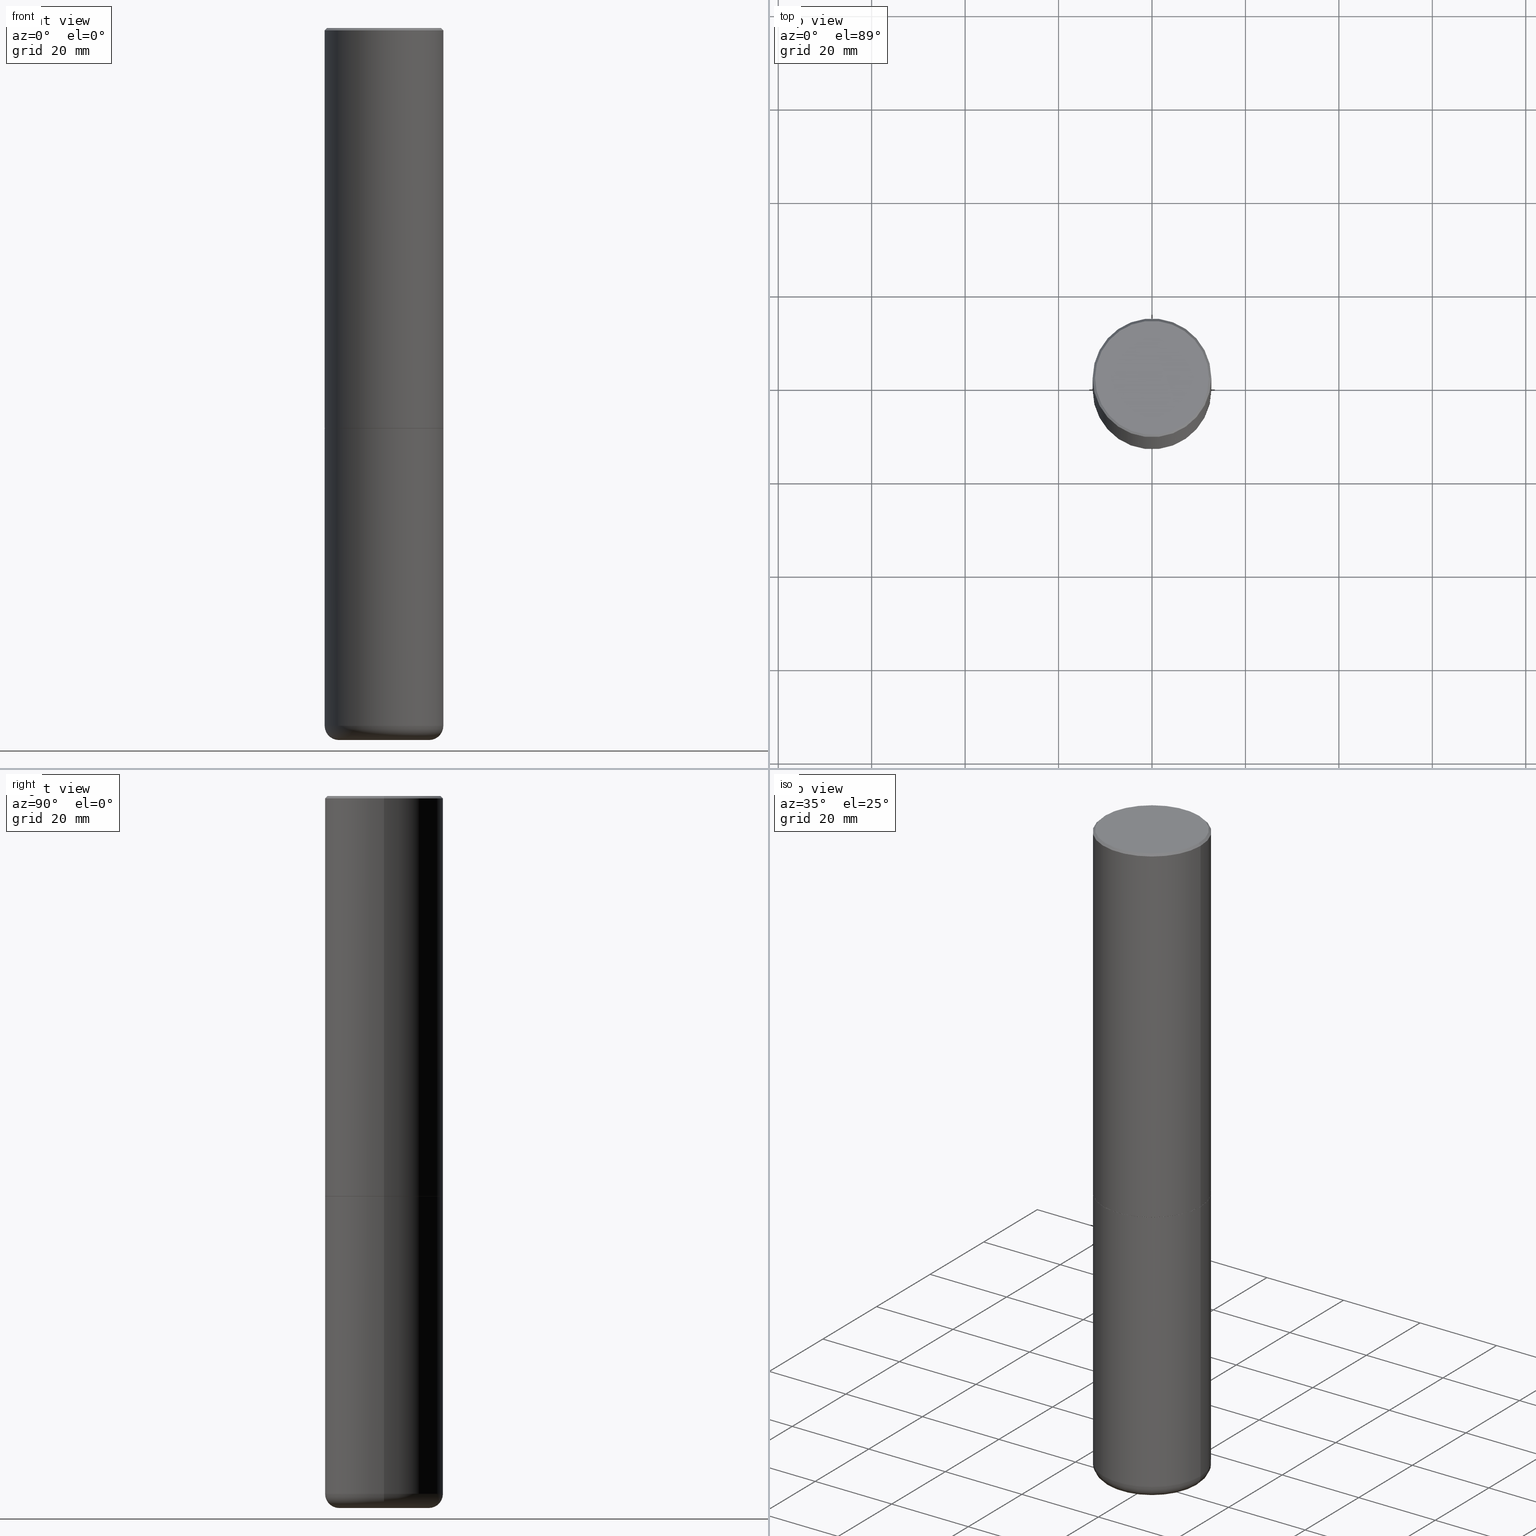
[diagram: canonical four-view strip — front | top / right | iso, engineering-drawing reading convention]
A machine part, canonical four-view strip (front | top / right | iso — engineering-drawing reading convention). The complete STEP part file that produces these views, byte-faithful:
ISO-10303-21;
HEADER;
FILE_DESCRIPTION (( 'STEP AP203' ),
    '1' );
FILE_NAME ('35126.STEP',
    '2022-07-29T12:17:54',
    ( '' ),
    ( '' ),
    'SwSTEP 2.0',
    'SolidWorks 2022',
    '' );
FILE_SCHEMA (( 'CONFIG_CONTROL_DESIGN' ));
ENDSEC;

DATA;
#1 = CLOSED_SHELL ( 'NONE', ( #425, #17, #170, #60, #44, #285, #221, #130, #449 ) ) ;
#2 = APPROVAL_DATE_TIME ( #334, #225 ) ;
#3 = LOCAL_TIME ( 8, 17, 54.00000000000000000, #30 ) ;
#4 = APPROVAL ( #321, 'UNSPECIFIED' ) ;
#5 = CONICAL_SURFACE ( 'NONE', #423, 0.3469528157401960411, 1.535889741755011029 ) ;
#6 = FACE_OUTER_BOUND ( 'NONE', #177, .T. ) ;
#7 = CARTESIAN_POINT ( 'NONE',  ( -0.4999999999999997224, 3.552713678800498957E-15, -2.459467545127451490E-29 ) ) ;
#8 = AXIS2_PLACEMENT_3D ( 'NONE', #311, #277, #435 ) ;
#9 = EDGE_CURVE ( 'NONE', #315, #18, #72, .T. ) ;
#10 = CARTESIAN_POINT ( 'NONE',  ( 1.464301836969204116E-28, -2.090486974609824986E-14, -5.987604880927720252 ) ) ;
#11 = CIRCLE ( 'NONE', #203, 0.4999999999999990563 ) ;
#12 = CARTESIAN_POINT ( 'NONE',  ( 8.253457220874838256E-29, -1.178374951859561925E-14, -3.375000000000000888 ) ) ;
#13 = DIRECTION ( 'NONE',  ( 1.000000000000000000, -6.982962677686266711E-15, 4.876176775795935793E-29 ) ) ;
#14 = ORIENTED_EDGE ( 'NONE', *, *, #309, .F. ) ;
#15 = DIRECTION ( 'NONE',  ( -2.445468806185136597E-29, 3.491481338843145583E-15, 1.000000000000000000 ) ) ;
#16 = CYLINDRICAL_SURFACE ( 'NONE', #227, 0.4999999999999997224 ) ;
#17 = ADVANCED_FACE ( 'NONE', ( #217 ), #89, .T. ) ;
#18 = VERTEX_POINT ( 'NONE', #363 ) ;
#19 = FACE_OUTER_BOUND ( 'NONE', #65, .T. ) ;
#20 = CIRCLE ( 'NONE', #159, 0.1200000000000004952 ) ;
#21 = ORIENTED_EDGE ( 'NONE', *, *, #45, .T. ) ;
#22 = PRODUCT ( '35126', '35126', '', ( #194 ) ) ;
#23 = FACE_OUTER_BOUND ( 'NONE', #347, .T. ) ;
#24 = DIRECTION ( 'NONE',  ( 1.000000000000000000, -6.982962677686265133E-15, 0.000000000000000000 ) ) ;
#25 = DIRECTION ( 'NONE',  ( -2.445468806185136877E-29, 3.491481338843145188E-15, 1.000000000000000000 ) ) ;
#26 = ORIENTED_EDGE ( 'NONE', *, *, #461, .F. ) ;
#27 = CARTESIAN_POINT ( 'NONE',  ( 0.3469528157401960411, -2.332818210049246927E-14, -5.999720740230696236 ) ) ;
#28 = DIRECTION ( 'NONE',  ( 1.000000000000000000, -6.982962677686267499E-15, 4.876176775795935793E-29 ) ) ;
#29 = EDGE_CURVE ( 'NONE', #96, #431, #210, .T. ) ;
#30 = COORDINATED_UNIVERSAL_TIME_OFFSET ( 5, 0, .BEHIND. ) ;
#31 = VERTEX_POINT ( 'NONE', #318 ) ;
#32 = CC_DESIGN_APPROVAL ( #225, ( #364 ) ) ;
#33 = LINE ( 'NONE', #27, #87 ) ;
#34 = APPROVAL_ROLE ( '' ) ;
#35 = VERTEX_POINT ( 'NONE', #149 ) ;
#36 = TOROIDAL_SURFACE ( 'NONE', #433, 0.3800000000000003930, 0.1200000000000004952 ) ;
#37 = FACE_OUTER_BOUND ( 'NONE', #120, .T. ) ;
#38 = ADVANCED_FACE ( 'NONE', ( #147 ), #71, .T. ) ;
#39 = PERSON_AND_ORGANIZATION ( #81, #90 ) ;
#40 = CIRCLE ( 'NONE', #310, 0.4999999999999994449 ) ;
#41 = APPROVAL_STATUS ( 'not_yet_approved' ) ;
#42 = CONICAL_SURFACE ( 'NONE', #276, 0.4999999999999990563, 0.7853981633974458365 ) ;
#43 = DIRECTION ( 'NONE',  ( -1.000000000000000000, 6.982962677686266711E-15, 0.000000000000000000 ) ) ;
#44 = ADVANCED_FACE ( 'NONE', ( #63 ), #5, .F. ) ;
#45 = EDGE_CURVE ( 'NONE', #189, #117, #385, .T. ) ;
#46 = DIRECTION ( 'NONE',  ( 0.7071067811865457964, -7.319954787623249734E-15, -0.7071067811865492381 ) ) ;
#47 = CONICAL_SURFACE ( 'NONE', #472, 0.3789528157401960695, 1.562069680534965865 ) ;
#48 = AXIS2_PLACEMENT_3D ( 'NONE', #440, #195, #330 ) ;
#49 = CARTESIAN_POINT ( 'NONE',  ( -0.3789528157401960695, -1.830267466414096086E-14, -5.999999999999999112 ) ) ;
#50 = EDGE_CURVE ( 'NONE', #306, #407, #11, .T. ) ;
#51 = DIRECTION ( 'NONE',  ( 1.000000000000000000, -6.982962677686264344E-15, 0.000000000000000000 ) ) ;
#52 = DIRECTION ( 'NONE',  ( -1.000000000000000000, 7.105427357600993970E-15, 0.000000000000000000 ) ) ;
#53 = LINE ( 'NONE', #304, #121 ) ;
#54 = CARTESIAN_POINT ( 'NONE',  ( -0.4999999999999990563, 3.421651712066262957E-15, -0.02000000000000028144 ) ) ;
#55 = ORIENTED_EDGE ( 'NONE', *, *, #353, .F. ) ;
#56 = DIRECTION ( 'NONE',  ( 1.000000000000000000, -6.982962677686265133E-15, 0.000000000000000000 ) ) ;
#57 = EDGE_CURVE ( 'NONE', #239, #117, #406, .T. ) ;
#58 = ORIENTED_EDGE ( 'NONE', *, *, #329, .T. ) ;
#59 = DIRECTION ( 'NONE',  ( 2.438088387897960049E-29, -3.491481338843145188E-15, -1.000000000000000000 ) ) ;
#60 = ADVANCED_FACE ( 'NONE', ( #107 ), #169, .F. ) ;
#61 = ORIENTED_EDGE ( 'NONE', *, *, #459, .F. ) ;
#62 = DIRECTION ( 'NONE',  ( 1.000000000000000000, -6.982962677686266711E-15, 0.000000000000000000 ) ) ;
#63 = FACE_OUTER_BOUND ( 'NONE', #168, .T. ) ;
#64 = CIRCLE ( 'NONE', #490, 0.5000000000000000000 ) ;
#65 = EDGE_LOOP ( 'NONE', ( #282, #327, #111, #214 ) ) ;
#66 = DIRECTION ( 'NONE',  ( -1.000000000000000000, 6.982962677686265133E-15, 0.000000000000000000 ) ) ;
#67 = DIRECTION ( 'NONE',  ( -2.445468806185136597E-29, 3.491481338843145583E-15, 1.000000000000000000 ) ) ;
#68 = VECTOR ( 'NONE', #436, 39.37007874015748143 ) ;
#69 = ORIENTED_EDGE ( 'NONE', *, *, #427, .F. ) ;
#70 = PLANE ( 'NONE',  #332 ) ;
#71 = CYLINDRICAL_SURFACE ( 'NONE', #492, 0.4999999999999992228 ) ;
#72 = CIRCLE ( 'NONE', #402, 0.3789528157401960695 ) ;
#73 = EDGE_CURVE ( 'NONE', #181, #239, #287, .T. ) ;
#74 = ORIENTED_EDGE ( 'NONE', *, *, #340, .F. ) ;
#75 = DIRECTION ( 'NONE',  ( -1.000000000000000000, 6.982962677686265133E-15, 0.000000000000000000 ) ) ;
#76 = CARTESIAN_POINT ( 'NONE',  ( 1.437936775428365776E-28, -2.052992622578700095E-14, -5.880004569232298195 ) ) ;
#77 = VERTEX_POINT ( 'NONE', #180 ) ;
#78 = CC_DESIGN_APPROVAL ( #4, ( #213 ) ) ;
#79 = DIRECTION ( 'NONE',  ( 2.445468806185136597E-29, -3.491481338843145583E-15, -1.000000000000000000 ) ) ;
#80 = ADVANCED_FACE ( 'NONE', ( #223 ), #458, .T. ) ;
#81 = PERSON ( 'UNSPECIFIED', 'UNSPECIFIED', 'UNSPECIFIED', ('UNSPECIFIED'), ('UNSPECIFIED'), ('UNSPECIFIED') ) ;
#82 = AXIS2_PLACEMENT_3D ( 'NONE', #98, #470, #141 ) ;
#83 = CARTESIAN_POINT ( 'NONE',  ( -0.4799999999999988165, 3.386736898677831703E-15, 1.280553747027767124E-17 ) ) ;
#84 = PERSON_AND_ORGANIZATION_ROLE ( 'design_supplier' ) ;
#85 = FACE_OUTER_BOUND ( 'NONE', #241, .T. ) ;
#86 = CALENDAR_DATE ( 2022, 29, 7 ) ;
#87 = VECTOR ( 'NONE', #374, 39.37007874015748143 ) ;
#88 = CIRCLE ( 'NONE', #249, 0.4999999999999990563 ) ;
#89 = TOROIDAL_SURFACE ( 'NONE', #352, 0.3800000000000003930, 0.1200000000000004952 ) ;
#90 = ORGANIZATION ( 'UNSPECIFIED', 'UNSPECIFIED', '' ) ;
#91 = ADVANCED_FACE ( 'NONE', ( #488 ), #371, .F. ) ;
#92 = EDGE_CURVE ( 'NONE', #224, #77, #259, .T. ) ;
#93 = AXIS2_PLACEMENT_3D ( 'NONE', #384, #390, #56 ) ;
#94 = CARTESIAN_POINT ( 'NONE',  ( 0.4999999999999994449, -1.527523085743874787E-14, -3.375000000000000888 ) ) ;
#95 = DIRECTION ( 'NONE',  ( 1.000000000000000000, -6.982962677686264344E-15, 0.000000000000000000 ) ) ;
#96 = VERTEX_POINT ( 'NONE', #83 ) ;
#97 = CONICAL_SURFACE ( 'NONE', #283, 0.3789528157401960695, 1.562069680534965865 ) ;
#98 = CARTESIAN_POINT ( 'NONE',  ( -3.131554243005659264E-46, 4.471029511141341874E-32, 1.280553747030123384E-17 ) ) ;
#99 = ORIENTED_EDGE ( 'NONE', *, *, #337, .F. ) ;
#100 = AXIS2_PLACEMENT_3D ( 'NONE', #119, #300, #380 ) ;
#101 = FACE_OUTER_BOUND ( 'NONE', #439, .T. ) ;
#102 = AXIS2_PLACEMENT_3D ( 'NONE', #345, #305, #136 ) ;
#103 = ORIENTED_EDGE ( 'NONE', *, *, #137, .F. ) ;
#104 = DIRECTION ( 'NONE',  ( -2.445468806185136597E-29, 3.491481338843145583E-15, 1.000000000000000000 ) ) ;
#105 = CARTESIAN_POINT ( 'NONE',  ( 1.467281283711081734E-28, -2.094888803305886955E-14, -5.999999999999999112 ) ) ;
#106 = ADVANCED_FACE ( 'NONE', ( #19 ), #42, .T. ) ;
#107 = FACE_OUTER_BOUND ( 'NONE', #246, .T. ) ;
#108 = ORIENTED_EDGE ( 'NONE', *, *, #459, .T. ) ;
#109 = CARTESIAN_POINT ( 'NONE',  ( 0.4999999999999990563, -3.500078625662622769E-15, -0.02000000000000028144 ) ) ;
#110 = PRODUCT_RELATED_PRODUCT_CATEGORY ( 'detail', '', ( #22 ) ) ;
#111 = ORIENTED_EDGE ( 'NONE', *, *, #123, .T. ) ;
#112 = CARTESIAN_POINT ( 'NONE',  ( 4.890937612370341472E-31, -6.982962677686388984E-17, -0.02000000000000028144 ) ) ;
#113 = AXIS2_PLACEMENT_3D ( 'NONE', #206, #59, #236 ) ;
#114 = ORIENTED_EDGE ( 'NONE', *, *, #242, .F. ) ;
#115 = DIRECTION ( 'NONE',  ( 0.000000000000000000, 0.000000000000000000, 1.000000000000000000 ) ) ;
#116 = DIRECTION ( 'NONE',  ( 2.445468806185136597E-29, -3.491481338843145583E-15, -1.000000000000000000 ) ) ;
#117 = VERTEX_POINT ( 'NONE', #94 ) ;
#118 = DIRECTION ( 'NONE',  ( -2.445468806185136597E-29, 3.491481338843145583E-15, 1.000000000000000000 ) ) ;
#119 = CARTESIAN_POINT ( 'NONE',  ( 0.000000000000000000, 0.000000000000000000, 0.000000000000000000 ) ) ;
#120 = EDGE_LOOP ( 'NONE', ( #14, #55 ) ) ;
#121 = VECTOR ( 'NONE', #349, 39.37007874015748143 ) ;
#122 = DIRECTION ( 'NONE',  ( -2.438088387897960049E-29, 3.491481338843145188E-15, 1.000000000000000000 ) ) ;
#123 = EDGE_CURVE ( 'NONE', #407, #306, #88, .T. ) ;
#124 = DIRECTION ( 'NONE',  ( -1.000000000000000000, 6.982962677686265922E-15, -4.876176775795935793E-29 ) ) ;
#125 = AXIS2_PLACEMENT_3D ( 'NONE', #155, #455, #124 ) ;
#126 = CALENDAR_DATE ( 2022, 29, 7 ) ;
#127 = COORDINATED_UNIVERSAL_TIME_OFFSET ( 5, 0, .BEHIND. ) ;
#128 = EDGE_CURVE ( 'NONE', #35, #407, #302, .T. ) ;
#129 = APPLICATION_PROTOCOL_DEFINITION ( 'international standard', 'config_control_design', 1994, #381 ) ;
#130 = ADVANCED_FACE ( 'NONE', ( #462 ), #36, .T. ) ;
#131 =( GEOMETRIC_REPRESENTATION_CONTEXT ( 3 ) GLOBAL_UNCERTAINTY_ASSIGNED_CONTEXT ( ( #469 ) ) GLOBAL_UNIT_ASSIGNED_CONTEXT ( ( #186, #218, #438 ) ) REPRESENTATION_CONTEXT ( 'NONE', 'WORKASPACE' ) );
#132 = CARTESIAN_POINT ( 'NONE',  ( -0.4999999999999999445, -1.260412419339080680E-14, -5.880004569232298195 ) ) ;
#133 = AXIS2_PLACEMENT_3D ( 'NONE', #76, #290, #451 ) ;
#134 = CARTESIAN_POINT ( 'NONE',  ( 4.890937612370341472E-31, -6.982962677686388984E-17, -0.02000000000000028144 ) ) ;
#135 = ORIENTED_EDGE ( 'NONE', *, *, #73, .F. ) ;
#136 = DIRECTION ( 'NONE',  ( 1.000000000000000000, -6.982962677686264344E-15, 0.000000000000000000 ) ) ;
#137 = EDGE_CURVE ( 'NONE', #117, #189, #465, .T. ) ;
#138 = EDGE_CURVE ( 'NONE', #18, #315, #232, .T. ) ;
#139 = CC_DESIGN_PERSON_AND_ORGANIZATION_ASSIGNMENT ( #417, #160, ( #265 ) ) ;
#140 = CIRCLE ( 'NONE', #8, 0.1200000000000004952 ) ;
#141 = DIRECTION ( 'NONE',  ( 1.000000000000000000, -6.982962677686267499E-15, 4.876036955247141175E-29 ) ) ;
#142 = ORIENTED_EDGE ( 'NONE', *, *, #410, .T. ) ;
#143 = DIRECTION ( 'NONE',  ( -2.445468806185136597E-29, 3.491481338843145583E-15, 1.000000000000000000 ) ) ;
#144 = AXIS2_PLACEMENT_3D ( 'NONE', #240, #266, #312 ) ;
#145 = DIRECTION ( 'NONE',  ( -2.445468806185136597E-29, 3.491481338843145583E-15, 1.000000000000000000 ) ) ;
#146 = EDGE_CURVE ( 'NONE', #96, #306, #235, .T. ) ;
#147 = FACE_OUTER_BOUND ( 'NONE', #477, .T. ) ;
#148 = CC_DESIGN_PERSON_AND_ORGANIZATION_ASSIGNMENT ( #162, #375, ( #364 ) ) ;
#149 = CARTESIAN_POINT ( 'NONE',  ( 0.4999999999999994449, -1.527173937609990644E-14, -3.374000000000001886 ) ) ;
#150 = ORIENTED_EDGE ( 'NONE', *, *, #29, .T. ) ;
#151 = APPLICATION_PROTOCOL_DEFINITION ( 'international standard', 'config_control_design', 1994, #405 ) ;
#152 = ORIENTED_EDGE ( 'NONE', *, *, #298, .F. ) ;
#153 = DIRECTION ( 'NONE',  ( -2.445468806185136597E-29, 3.491481338843145583E-15, 1.000000000000000000 ) ) ;
#154 = ORIENTED_EDGE ( 'NONE', *, *, #9, .T. ) ;
#155 = CARTESIAN_POINT ( 'NONE',  ( 3.351822085289399659E-15, 0.4799999999999988165, -1.669508273909555106E-15 ) ) ;
#156 = APPROVAL_PERSON_ORGANIZATION ( #297, #263, #491 ) ;
#157 = SECURITY_CLASSIFICATION_LEVEL ( 'unclassified' ) ;
#158 = CARTESIAN_POINT ( 'NONE',  ( 0.4999999999999990563, -3.500078625662622769E-15, -0.02000000000000028144 ) ) ;
#159 = AXIS2_PLACEMENT_3D ( 'NONE', #238, #350, #52 ) ;
#160 = PERSON_AND_ORGANIZATION_ROLE ( 'creator' ) ;
#161 = CC_DESIGN_DATE_AND_TIME_ASSIGNMENT ( #437, #356, ( #213 ) ) ;
#162 = PERSON_AND_ORGANIZATION ( #81, #90 ) ;
#163 = VECTOR ( 'NONE', #333, 39.37007874015748854 ) ;
#164 = CARTESIAN_POINT ( 'NONE',  ( 1.467212991605616561E-28, -2.094791300278565904E-14, -5.999720740230696236 ) ) ;
#165 = EDGE_CURVE ( 'NONE', #431, #96, #200, .T. ) ;
#166 = PLANE ( 'NONE',  #113 ) ;
#167 = AXIS2_PLACEMENT_3D ( 'NONE', #228, #145, #399 ) ;
#168 = EDGE_LOOP ( 'NONE', ( #69, #391, #74 ) ) ;
#169 = CONICAL_SURFACE ( 'NONE', #48, 0.3469528157401960411, 1.535889741755011029 ) ;
#170 = ADVANCED_FACE ( 'NONE', ( #386 ), #16, .T. ) ;
#171 = DIRECTION ( 'NONE',  ( -0.7071067811865457964, 2.468850131082238917E-15, -0.7071067811865492381 ) ) ;
#172 = ORIENTED_EDGE ( 'NONE', *, *, #309, .T. ) ;
#173 = DIRECTION ( 'NONE',  ( -2.445468806185136597E-29, 3.491481338843145583E-15, 1.000000000000000000 ) ) ;
#174 = DIRECTION ( 'NONE',  ( -2.445468806185136597E-29, 3.491481338843145583E-15, 1.000000000000000000 ) ) ;
#175 = AXIS2_PLACEMENT_3D ( 'NONE', #216, #413, #280 ) ;
#176 = CARTESIAN_POINT ( 'NONE',  ( 0.000000000000000000, 0.000000000000000000, 0.000000000000000000 ) ) ;
#177 = EDGE_LOOP ( 'NONE', ( #275, #21 ) ) ;
#178 = MANIFOLD_SOLID_BREP ( 'Body-Move/Copy2[2]', #270 ) ;
#179 = ORIENTED_EDGE ( 'NONE', *, *, #410, .F. ) ;
#180 = CARTESIAN_POINT ( 'NONE',  ( -0.3469528157401960411, -1.852515443955370911E-14, -5.999720740230696236 ) ) ;
#181 = VERTEX_POINT ( 'NONE', #132 ) ;
#182 = CARTESIAN_POINT ( 'NONE',  ( -0.4999999999999992228, 3.552713678800495407E-15, -2.459467545127449248E-29 ) ) ;
#183 = CARTESIAN_POINT ( 'NONE',  ( 1.437936775428365776E-28, -2.052992622578700095E-14, -5.880004569232298195 ) ) ;
#184 = DIRECTION ( 'NONE',  ( -2.445468806185136597E-29, 3.491481338843145583E-15, 1.000000000000000000 ) ) ;
#185 = ORIENTED_EDGE ( 'NONE', *, *, #382, .T. ) ;
#186 =( CONVERSION_BASED_UNIT ( 'INCH', #316 ) LENGTH_UNIT ( ) NAMED_UNIT ( #456 ) );
#187 = CARTESIAN_POINT ( 'NONE',  ( -3.131554243005659264E-46, 4.471029511141341874E-32, 1.280553747030123384E-17 ) ) ;
#188 = DATE_AND_TIME ( #326, #3 ) ;
#189 = VERTEX_POINT ( 'NONE', #269 ) ;
#190 = CARTESIAN_POINT ( 'NONE',  ( 1.467281283711081734E-28, -2.094888803305886955E-14, -5.999999999999999112 ) ) ;
#191 = CYLINDRICAL_SURFACE ( 'NONE', #100, 0.4999999999999992228 ) ;
#192 = APPROVAL_DATE_TIME ( #188, #4 ) ;
#193 = ORIENTED_EDGE ( 'NONE', *, *, #278, .T. ) ;
#194 = MECHANICAL_CONTEXT ( 'NONE', #405, 'mechanical' ) ;
#195 = DIRECTION ( 'NONE',  ( 2.445468806185136597E-29, -3.491481338843145583E-15, -1.000000000000000000 ) ) ;
#196 = CARTESIAN_POINT ( 'NONE',  ( 1.437936775428365776E-28, -2.052992622578700095E-14, -5.880004569232298195 ) ) ;
#197 = LOCAL_TIME ( 8, 17, 54.00000000000000000, #377 ) ;
#198 = CALENDAR_DATE ( 2022, 29, 7 ) ;
#199 = CC_DESIGN_DATE_AND_TIME_ASSIGNMENT ( #460, #260, ( #364 ) ) ;
#200 = CIRCLE ( 'NONE', #82, 0.4799999999999988165 ) ;
#201 = CALENDAR_DATE ( 2022, 29, 7 ) ;
#202 = VECTOR ( 'NONE', #394, 39.37007874015748143 ) ;
#203 = AXIS2_PLACEMENT_3D ( 'NONE', #112, #153, #229 ) ;
#204 = DIRECTION ( 'NONE',  ( -0.9999619230641716427, 6.952228252019315186E-15, -0.008726535498333042040 ) ) ;
#205 = CARTESIAN_POINT ( 'NONE',  ( 8.251011752068656016E-29, -1.178025803725677782E-14, -3.374000000000001886 ) ) ;
#206 = CARTESIAN_POINT ( 'NONE',  ( 3.491481338843211453E-15, 0.4999999999999876210, -3.375000000000002665 ) ) ;
#207 = CARTESIAN_POINT ( 'NONE',  ( -0.4989999999999994440, -8.232842812804502449E-15, -3.375000000000000888 ) ) ;
#208 = CARTESIAN_POINT ( 'NONE',  ( -0.4999999999999990563, 3.421651712066262957E-15, -0.02000000000000028144 ) ) ;
#209 = ORIENTED_EDGE ( 'NONE', *, *, #57, .F. ) ;
#210 = CIRCLE ( 'NONE', #346, 0.4799999999999988165 ) ;
#211 = LINE ( 'NONE', #49, #414 ) ;
#212 = ORIENTED_EDGE ( 'NONE', *, *, #242, .T. ) ;
#213 = SECURITY_CLASSIFICATION ( '', '', #157 ) ;
#214 = ORIENTED_EDGE ( 'NONE', *, *, #146, .F. ) ;
#215 = ORIENTED_EDGE ( 'NONE', *, *, #378, .T. ) ;
#216 = CARTESIAN_POINT ( 'NONE',  ( 4.890937612370341472E-31, -6.982962677686388984E-17, -0.02000000000000028144 ) ) ;
#217 = FACE_OUTER_BOUND ( 'NONE', #480, .T. ) ;
#218 =( NAMED_UNIT ( * ) PLANE_ANGLE_UNIT ( ) SI_UNIT ( $, .RADIAN. ) );
#219 = CARTESIAN_POINT ( 'NONE',  ( 0.000000000000000000, 0.000000000000000000, 0.000000000000000000 ) ) ;
#220 = ORIENTED_EDGE ( 'NONE', *, *, #73, .T. ) ;
#221 = ADVANCED_FACE ( 'NONE', ( #101 ), #424, .T. ) ;
#222 = VECTOR ( 'NONE', #483, 39.37007874015748854 ) ;
#223 = FACE_OUTER_BOUND ( 'NONE', #443, .T. ) ;
#224 = VERTEX_POINT ( 'NONE', #10 ) ;
#225 = APPROVAL ( #230, 'UNSPECIFIED' ) ;
#226 = DIRECTION ( 'NONE',  ( 2.445468806185136597E-29, -3.491481338843145583E-15, -1.000000000000000000 ) ) ;
#227 = AXIS2_PLACEMENT_3D ( 'NONE', #176, #274, #13 ) ;
#228 = CARTESIAN_POINT ( 'NONE',  ( 1.467212991605616561E-28, -2.094791300278565904E-14, -5.999720740230696236 ) ) ;
#229 = DIRECTION ( 'NONE',  ( 1.000000000000000000, -6.982962677686266711E-15, 0.000000000000000000 ) ) ;
#230 = APPROVAL_STATUS ( 'not_yet_approved' ) ;
#231 = CIRCLE ( 'NONE', #409, 0.4989999999999994440 ) ;
#232 = CIRCLE ( 'NONE', #93, 0.3789528157401960695 ) ;
#233 = CONICAL_SURFACE ( 'NONE', #175, 0.4999999999999990563, 0.7853981633974458365 ) ;
#234 = CARTESIAN_POINT ( 'NONE',  ( 8.253457220874838256E-29, -1.178374951859561925E-14, -3.375000000000000888 ) ) ;
#235 = LINE ( 'NONE', #208, #335 ) ;
#236 = DIRECTION ( 'NONE',  ( -1.000000000000000000, 6.982962677686265922E-15, -4.876176775795935793E-29 ) ) ;
#237 = EDGE_LOOP ( 'NONE', ( #172, #58, #485, #179 ) ) ;
#238 = CARTESIAN_POINT ( 'NONE',  ( -0.3800000000000003930, -1.782986382989861784E-14, -5.880004569232298195 ) ) ;
#239 = VERTEX_POINT ( 'NONE', #389 ) ;
#240 = CARTESIAN_POINT ( 'NONE',  ( 8.253457220874838256E-29, -1.178374951859561925E-14, -3.375000000000000888 ) ) ;
#241 = EDGE_LOOP ( 'NONE', ( #360, #215, #452, #281 ) ) ;
#242 = EDGE_CURVE ( 'NONE', #18, #181, #20, .T. ) ;
#243 = CIRCLE ( 'NONE', #167, 0.3469528157401960411 ) ;
#244 = DIRECTION ( 'NONE',  ( -2.445468806185136597E-29, 3.491481338843145583E-15, 1.000000000000000000 ) ) ;
#245 = CARTESIAN_POINT ( 'NONE',  ( -0.3469528157401960411, -1.852515443955370911E-14, -5.999720740230696236 ) ) ;
#246 = EDGE_LOOP ( 'NONE', ( #446, #401, #366 ) ) ;
#247 = DIRECTION ( 'NONE',  ( 1.000000000000000000, -6.982962677686266711E-15, 0.000000000000000000 ) ) ;
#248 = ORIENTED_EDGE ( 'NONE', *, *, #278, .F. ) ;
#249 = AXIS2_PLACEMENT_3D ( 'NONE', #134, #432, #355 ) ;
#250 = DIRECTION ( 'NONE',  ( -1.000000000000000000, 6.982962677686270655E-15, 0.000000000000000000 ) ) ;
#251 = ORIENTED_EDGE ( 'NONE', *, *, #128, .T. ) ;
#252 = LINE ( 'NONE', #182, #202 ) ;
#253 = ORIENTED_EDGE ( 'NONE', *, *, #373, .F. ) ;
#254 = CARTESIAN_POINT ( 'NONE',  ( 0.4799999999999988165, -3.396558832296475394E-15, 1.280553747032483033E-17 ) ) ;
#255 = AXIS2_PLACEMENT_3D ( 'NONE', #164, #411, #293 ) ;
#256 = SHAPE_DEFINITION_REPRESENTATION ( #400, #471 ) ;
#257 = CARTESIAN_POINT ( 'NONE',  ( 0.4989999999999994440, -1.526824789476106186E-14, -3.375000000000000888 ) ) ;
#258 = AXIS2_PLACEMENT_3D ( 'NONE', #234, #173, #95 ) ;
#259 = LINE ( 'NONE', #245, #379 ) ;
#260 = DATE_TIME_ROLE ( 'creation_date' ) ;
#261 = APPROVAL_ROLE ( '' ) ;
#262 = PERSON_AND_ORGANIZATION ( #81, #90 ) ;
#263 = APPROVAL ( #41, 'UNSPECIFIED' ) ;
#264 = CARTESIAN_POINT ( 'NONE',  ( 0.3789528157401960695, -2.359510140197678140E-14, -5.999999999999999112 ) ) ;
#265 = PRODUCT_DEFINITION_FORMATION_WITH_SPECIFIED_SOURCE ( 'ANY', '', #22, .NOT_KNOWN. ) ;
#266 = DIRECTION ( 'NONE',  ( -2.445468806185136597E-29, 3.491481338843145583E-15, 1.000000000000000000 ) ) ;
#267 = AXIS2_PLACEMENT_3D ( 'NONE', #412, #184, #444 ) ;
#268 = ADVANCED_FACE ( 'NONE', ( #279 ), #348, .T. ) ;
#269 = CARTESIAN_POINT ( 'NONE',  ( -0.4999999999999994449, -1.260412419339081154E-14, -3.375000000000000888 ) ) ;
#270 = CLOSED_SHELL ( 'NONE', ( #268, #317, #106, #421, #38, #80, #481, #91 ) ) ;
#271 = CARTESIAN_POINT ( 'NONE',  ( 0.4999999999999992228, -3.491481338843128228E-15, 2.438088387897963973E-29 ) ) ;
#272 = EDGE_LOOP ( 'NONE', ( #359, #441, #103, #209 ) ) ;
#273 = LOCAL_TIME ( 8, 17, 54.00000000000000000, #418 ) ;
#274 = DIRECTION ( 'NONE',  ( -2.445468806185136597E-29, 3.491481338843145583E-15, 1.000000000000000000 ) ) ;
#275 = ORIENTED_EDGE ( 'NONE', *, *, #137, .T. ) ;
#276 = AXIS2_PLACEMENT_3D ( 'NONE', #476, #396, #43 ) ;
#277 = DIRECTION ( 'NONE',  ( -6.982962677686266711E-15, -1.000000000000000000, 3.491481338843145583E-15 ) ) ;
#278 = EDGE_CURVE ( 'NONE', #77, #18, #211, .T. ) ;
#279 = FACE_OUTER_BOUND ( 'NONE', #237, .T. ) ;
#280 = DIRECTION ( 'NONE',  ( -1.000000000000000000, 6.982962677686266711E-15, 0.000000000000000000 ) ) ;
#281 = ORIENTED_EDGE ( 'NONE', *, *, #128, .F. ) ;
#282 = ORIENTED_EDGE ( 'NONE', *, *, #165, .F. ) ;
#283 = AXIS2_PLACEMENT_3D ( 'NONE', #190, #226, #75 ) ;
#284 = DIRECTION ( 'NONE',  ( 1.000000000000000000, -6.982962677686267499E-15, 4.876036955247141175E-29 ) ) ;
#285 = ADVANCED_FACE ( 'NONE', ( #6 ), #166, .F. ) ;
#286 = ORIENTED_EDGE ( 'NONE', *, *, #165, .T. ) ;
#287 = CIRCLE ( 'NONE', #133, 0.5000000000000000000 ) ;
#288 = ORIENTED_EDGE ( 'NONE', *, *, #146, .T. ) ;
#289 = CARTESIAN_POINT ( 'NONE',  ( 0.000000000000000000, 0.000000000000000000, 0.000000000000000000 ) ) ;
#290 = DIRECTION ( 'NONE',  ( -2.445468806185136597E-29, 3.491481338843145583E-15, 1.000000000000000000 ) ) ;
#291 = ORIENTED_EDGE ( 'NONE', *, *, #50, .T. ) ;
#292 = CARTESIAN_POINT ( 'NONE',  ( 1.467281283711081734E-28, -2.094888803305886955E-14, -5.999999999999999112 ) ) ;
#293 = DIRECTION ( 'NONE',  ( 1.000000000000000000, -6.982962677686270655E-15, 0.000000000000000000 ) ) ;
#294 = CARTESIAN_POINT ( 'NONE',  ( 8.253457220874838256E-29, -1.178374951859561925E-14, -3.375000000000000888 ) ) ;
#295 = PERSON_AND_ORGANIZATION ( #81, #90 ) ;
#296 = PERSON_AND_ORGANIZATION_ROLE ( 'classification_officer' ) ;
#297 = PERSON_AND_ORGANIZATION ( #81, #90 ) ;
#298 = EDGE_CURVE ( 'NONE', #181, #189, #344, .T. ) ;
#299 = APPROVAL_PERSON_ORGANIZATION ( #445, #4, #34 ) ;
#300 = DIRECTION ( 'NONE',  ( -2.445468806185136597E-29, 3.491481338843145583E-15, 1.000000000000000000 ) ) ;
#301 = LOCAL_TIME ( 8, 17, 54.00000000000000000, #419 ) ;
#302 = LINE ( 'NONE', #271, #68 ) ;
#303 = EDGE_LOOP ( 'NONE', ( #114, #403, #482, #135 ) ) ;
#304 = CARTESIAN_POINT ( 'NONE',  ( 0.3789528157401960695, -2.354869306669437136E-14, -5.999999999999999112 ) ) ;
#305 = DIRECTION ( 'NONE',  ( -2.445468806185136597E-29, 3.491481338843145583E-15, 1.000000000000000000 ) ) ;
#306 = VERTEX_POINT ( 'NONE', #54 ) ;
#307 = CARTESIAN_POINT ( 'NONE',  ( 1.437936775428365776E-28, -2.052992622578700095E-14, -5.880004569232298195 ) ) ;
#308 = VERTEX_POINT ( 'NONE', #207 ) ;
#309 = EDGE_CURVE ( 'NONE', #397, #308, #447, .T. ) ;
#310 = AXIS2_PLACEMENT_3D ( 'NONE', #323, #118, #247 ) ;
#311 = CARTESIAN_POINT ( 'NONE',  ( 0.3800000000000003930, -2.318345204330778419E-14, -5.880004569232298195 ) ) ;
#312 = DIRECTION ( 'NONE',  ( 1.000000000000000000, -6.982962677686266711E-15, 0.000000000000000000 ) ) ;
#313 = AXIS2_PLACEMENT_3D ( 'NONE', #294, #484, #365 ) ;
#314 = ORIENTED_EDGE ( 'NONE', *, *, #29, .F. ) ;
#315 = VERTEX_POINT ( 'NONE', #264 ) ;
#316 = LENGTH_MEASURE_WITH_UNIT ( LENGTH_MEASURE( 0.02539999999999999897 ), #442 );
#317 = ADVANCED_FACE ( 'NONE', ( #85 ), #191, .T. ) ;
#318 = CARTESIAN_POINT ( 'NONE',  ( -0.4999999999999994449, -2.372330153216321997E-15, -3.374000000000001886 ) ) ;
#319 = ORIENTED_EDGE ( 'NONE', *, *, #9, .F. ) ;
#320 = CC_DESIGN_PERSON_AND_ORGANIZATION_ASSIGNMENT ( #457, #84, ( #265 ) ) ;
#321 = APPROVAL_STATUS ( 'not_yet_approved' ) ;
#322 = ORIENTED_EDGE ( 'NONE', *, *, #57, .T. ) ;
#323 = CARTESIAN_POINT ( 'NONE',  ( 8.251011752068656016E-29, -1.178025803725677782E-14, -3.374000000000001886 ) ) ;
#324 = LINE ( 'NONE', #158, #463 ) ;
#325 = CARTESIAN_POINT ( 'NONE',  ( 1.467212991605616561E-28, -2.094791300278565904E-14, -5.999720740230696236 ) ) ;
#326 = CALENDAR_DATE ( 2022, 29, 7 ) ;
#327 = ORIENTED_EDGE ( 'NONE', *, *, #337, .T. ) ;
#328 = FACE_OUTER_BOUND ( 'NONE', #466, .T. ) ;
#329 = EDGE_CURVE ( 'NONE', #308, #31, #487, .T. ) ;
#330 = DIRECTION ( 'NONE',  ( -1.000000000000000000, 6.982962677686270655E-15, 0.000000000000000000 ) ) ;
#331 = DATE_AND_TIME ( #201, #273 ) ;
#332 = AXIS2_PLACEMENT_3D ( 'NONE', #486, #122, #362 ) ;
#333 = DIRECTION ( 'NONE',  ( -0.7071067811868130271, 7.493145998871311837E-15, 0.7071067811862817853 ) ) ;
#334 = DATE_AND_TIME ( #198, #197 ) ;
#335 = VECTOR ( 'NONE', #171, 39.37007874015748143 ) ;
#336 = PERSON_AND_ORGANIZATION_ROLE ( 'design_owner' ) ;
#337 = EDGE_CURVE ( 'NONE', #431, #407, #324, .T. ) ;
#338 = CC_DESIGN_SECURITY_CLASSIFICATION ( #213, ( #265 ) ) ;
#339 = AXIS2_PLACEMENT_3D ( 'NONE', #342, #143, #429 ) ;
#340 = EDGE_CURVE ( 'NONE', #351, #77, #454, .T. ) ;
#341 = CC_DESIGN_PERSON_AND_ORGANIZATION_ASSIGNMENT ( #295, #296, ( #213 ) ) ;
#342 = CARTESIAN_POINT ( 'NONE',  ( 0.000000000000000000, 0.000000000000000000, 0.000000000000000000 ) ) ;
#343 = EDGE_CURVE ( 'NONE', #351, #315, #53, .T. ) ;
#344 = LINE ( 'NONE', #7, #474 ) ;
#345 = CARTESIAN_POINT ( 'NONE',  ( 8.253457220874838256E-29, -1.178374951859561925E-14, -3.375000000000000888 ) ) ;
#346 = AXIS2_PLACEMENT_3D ( 'NONE', #187, #67, #284 ) ;
#347 = EDGE_LOOP ( 'NONE', ( #473, #434, #193, #319 ) ) ;
#348 = CONICAL_SURFACE ( 'NONE', #258, 0.4989999999999994440, 0.7853981633978239785 ) ;
#349 = DIRECTION ( 'NONE',  ( 0.9999619230641716427, -6.890705306874701477E-15, -0.008726535498333042040 ) ) ;
#350 = DIRECTION ( 'NONE',  ( 7.105427357601001859E-15, 1.000000000000000000, -3.491481338843145583E-15 ) ) ;
#351 = VERTEX_POINT ( 'NONE', #354 ) ;
#352 = AXIS2_PLACEMENT_3D ( 'NONE', #183, #395, #475 ) ;
#353 = EDGE_CURVE ( 'NONE', #308, #397, #231, .T. ) ;
#354 = CARTESIAN_POINT ( 'NONE',  ( 0.3469528157401960411, -2.332818210049246927E-14, -5.999720740230696236 ) ) ;
#355 = DIRECTION ( 'NONE',  ( 1.000000000000000000, -6.982962677686266711E-15, 0.000000000000000000 ) ) ;
#356 = DATE_TIME_ROLE ( 'classification_date' ) ;
#357 = ORIENTED_EDGE ( 'NONE', *, *, #138, .F. ) ;
#358 = APPROVAL_PERSON_ORGANIZATION ( #262, #225, #261 ) ;
#359 = ORIENTED_EDGE ( 'NONE', *, *, #461, .T. ) ;
#360 = ORIENTED_EDGE ( 'NONE', *, *, #361, .T. ) ;
#361 = EDGE_CURVE ( 'NONE', #35, #31, #370, .T. ) ;
#362 = DIRECTION ( 'NONE',  ( 1.000000000000000000, -6.982962677686265922E-15, 4.876176775795935793E-29 ) ) ;
#363 = CARTESIAN_POINT ( 'NONE',  ( -0.3789528157401960695, -1.761673943792252384E-14, -5.999999999999999112 ) ) ;
#364 = PRODUCT_DEFINITION ( 'UNKNOWN', '', #265, #428 ) ;
#365 = DIRECTION ( 'NONE',  ( 1.000000000000000000, -6.982962677686266711E-15, 0.000000000000000000 ) ) ;
#366 = ORIENTED_EDGE ( 'NONE', *, *, #382, .F. ) ;
#367 = CARTESIAN_POINT ( 'NONE',  ( 0.4989999999999994440, -1.526824789476106186E-14, -3.375000000000000888 ) ) ;
#368 = DIRECTION ( 'NONE',  ( -2.445468806185136597E-29, 3.491481338843145583E-15, 1.000000000000000000 ) ) ;
#369 = ORIENTED_EDGE ( 'NONE', *, *, #343, .T. ) ;
#370 = CIRCLE ( 'NONE', #393, 0.4999999999999994449 ) ;
#371 = PLANE ( 'NONE',  #125 ) ;
#372 = EDGE_LOOP ( 'NONE', ( #150, #286 ) ) ;
#373 = EDGE_CURVE ( 'NONE', #315, #239, #140, .T. ) ;
#374 = DIRECTION ( 'NONE',  ( 0.9993908270190957621, -6.978169709227537544E-15, -0.03489949670249996999 ) ) ;
#375 = PERSON_AND_ORGANIZATION_ROLE ( 'creator' ) ;
#376 = LOCAL_TIME ( 8, 17, 54.00000000000000000, #127 ) ;
#377 = COORDINATED_UNIVERSAL_TIME_OFFSET ( 5, 0, .BEHIND. ) ;
#378 = EDGE_CURVE ( 'NONE', #31, #306, #252, .T. ) ;
#379 = VECTOR ( 'NONE', #415, 39.37007874015748143 ) ;
#380 = DIRECTION ( 'NONE',  ( 1.000000000000000000, -6.982962677686267499E-15, 4.876176775795935793E-29 ) ) ;
#381 = APPLICATION_CONTEXT ( 'configuration controlled 3d designs of mechanical parts and assemblies' ) ;
#382 = EDGE_CURVE ( 'NONE', #77, #351, #243, .T. ) ;
#383 = AXIS2_PLACEMENT_3D ( 'NONE', #289, #115, #404 ) ;
#384 = CARTESIAN_POINT ( 'NONE',  ( 1.467281283711081734E-28, -2.094888803305886955E-14, -5.999999999999999112 ) ) ;
#385 = CIRCLE ( 'NONE', #313, 0.4999999999999994449 ) ;
#386 = FACE_OUTER_BOUND ( 'NONE', #272, .T. ) ;
#387 = DIRECTION ( 'NONE',  ( -2.445468806185136877E-29, 3.491481338843145188E-15, 1.000000000000000000 ) ) ;
#388 = ORIENTED_EDGE ( 'NONE', *, *, #45, .F. ) ;
#389 = CARTESIAN_POINT ( 'NONE',  ( 0.5000000000000000000, -2.402140756463013115E-14, -5.880004569232298195 ) ) ;
#390 = DIRECTION ( 'NONE',  ( -2.445468806185136597E-29, 3.491481338843145583E-15, 1.000000000000000000 ) ) ;
#391 = ORIENTED_EDGE ( 'NONE', *, *, #92, .T. ) ;
#392 = ORIENTED_EDGE ( 'NONE', *, *, #50, .F. ) ;
#393 = AXIS2_PLACEMENT_3D ( 'NONE', #205, #174, #62 ) ;
#394 = DIRECTION ( 'NONE',  ( -2.445468806185136877E-29, 3.491481338843145188E-15, 1.000000000000000000 ) ) ;
#395 = DIRECTION ( 'NONE',  ( -2.445468806185136597E-29, 3.491481338843145583E-15, 1.000000000000000000 ) ) ;
#396 = DIRECTION ( 'NONE',  ( 2.445468806185136597E-29, -3.491481338843145583E-15, -1.000000000000000000 ) ) ;
#397 = VERTEX_POINT ( 'NONE', #257 ) ;
#398 = VECTOR ( 'NONE', #25, 39.37007874015748143 ) ;
#399 = DIRECTION ( 'NONE',  ( 1.000000000000000000, -6.982962677686270655E-15, 0.000000000000000000 ) ) ;
#400 = PRODUCT_DEFINITION_SHAPE ( 'NONE', 'NONE',  #364 ) ;
#401 = ORIENTED_EDGE ( 'NONE', *, *, #427, .T. ) ;
#402 = AXIS2_PLACEMENT_3D ( 'NONE', #105, #244, #24 ) ;
#403 = ORIENTED_EDGE ( 'NONE', *, *, #138, .T. ) ;
#404 = DIRECTION ( 'NONE',  ( 1.000000000000000000, 0.000000000000000000, 0.000000000000000000 ) ) ;
#405 = APPLICATION_CONTEXT ( 'configuration controlled 3d designs of mechanical parts and assemblies' ) ;
#406 = LINE ( 'NONE', #479, #398 ) ;
#407 = VERTEX_POINT ( 'NONE', #109 ) ;
#408 = DIRECTION ( 'NONE',  ( 1.000000000000000000, -6.982962677686262766E-15, 0.000000000000000000 ) ) ;
#409 = AXIS2_PLACEMENT_3D ( 'NONE', #12, #15, #51 ) ;
#410 = EDGE_CURVE ( 'NONE', #397, #35, #450, .T. ) ;
#411 = DIRECTION ( 'NONE',  ( -2.445468806185136597E-29, 3.491481338843145583E-15, 1.000000000000000000 ) ) ;
#412 = CARTESIAN_POINT ( 'NONE',  ( 8.253457220874838256E-29, -1.178374951859561925E-14, -3.375000000000000888 ) ) ;
#413 = DIRECTION ( 'NONE',  ( 2.445468806185136597E-29, -3.491481338843145583E-15, -1.000000000000000000 ) ) ;
#414 = VECTOR ( 'NONE', #204, 39.37007874015748143 ) ;
#415 = DIRECTION ( 'NONE',  ( -0.9993908270190957621, 6.856857904024560415E-15, -0.03489949670249996999 ) ) ;
#416 = MANIFOLD_SOLID_BREP ( 'Body-Move/Copy2[1]', #1 ) ;
#417 = PERSON_AND_ORGANIZATION ( #81, #90 ) ;
#418 = COORDINATED_UNIVERSAL_TIME_OFFSET ( 5, 0, .BEHIND. ) ;
#419 = COORDINATED_UNIVERSAL_TIME_OFFSET ( 5, 0, .BEHIND. ) ;
#420 = CARTESIAN_POINT ( 'NONE',  ( -0.4989999999999994440, -8.238141267152723273E-15, -3.375000000000000888 ) ) ;
#421 = ADVANCED_FACE ( 'NONE', ( #453 ), #233, .T. ) ;
#422 = DIRECTION ( 'NONE',  ( -2.445468806185136597E-29, 3.491481338843145583E-15, 1.000000000000000000 ) ) ;
#423 = AXIS2_PLACEMENT_3D ( 'NONE', #325, #116, #250 ) ;
#424 = CYLINDRICAL_SURFACE ( 'NONE', #339, 0.4999999999999997224 ) ;
#425 = ADVANCED_FACE ( 'NONE', ( #328 ), #97, .F. ) ;
#426 = ORIENTED_EDGE ( 'NONE', *, *, #353, .T. ) ;
#427 = EDGE_CURVE ( 'NONE', #224, #351, #33, .T. ) ;
#428 = DESIGN_CONTEXT ( 'detailed design', #381, 'design' ) ;
#429 = DIRECTION ( 'NONE',  ( 1.000000000000000000, -6.982962677686266711E-15, 4.876176775795935793E-29 ) ) ;
#430 = CC_DESIGN_APPROVAL ( #263, ( #265 ) ) ;
#431 = VERTEX_POINT ( 'NONE', #254 ) ;
#432 = DIRECTION ( 'NONE',  ( -2.445468806185136597E-29, 3.491481338843145583E-15, 1.000000000000000000 ) ) ;
#433 = AXIS2_PLACEMENT_3D ( 'NONE', #307, #422, #464 ) ;
#434 = ORIENTED_EDGE ( 'NONE', *, *, #340, .T. ) ;
#435 = DIRECTION ( 'NONE',  ( 1.000000000000000000, -6.982962677686271444E-15, 0.000000000000000000 ) ) ;
#436 = DIRECTION ( 'NONE',  ( -2.445468806185136877E-29, 3.491481338843145188E-15, 1.000000000000000000 ) ) ;
#437 = DATE_AND_TIME ( #126, #376 ) ;
#438 =( NAMED_UNIT ( * ) SI_UNIT ( $, .STERADIAN. ) SOLID_ANGLE_UNIT ( ) );
#439 = EDGE_LOOP ( 'NONE', ( #152, #220, #322, #388 ) ) ;
#440 = CARTESIAN_POINT ( 'NONE',  ( 1.467212991605616561E-28, -2.094791300278565904E-14, -5.999720740230696236 ) ) ;
#441 = ORIENTED_EDGE ( 'NONE', *, *, #298, .T. ) ;
#442 =( LENGTH_UNIT ( ) NAMED_UNIT ( * ) SI_UNIT ( $, .METRE. ) );
#443 = EDGE_LOOP ( 'NONE', ( #478, #426, #142, #61 ) ) ;
#444 = DIRECTION ( 'NONE',  ( 1.000000000000000000, -6.982962677686264344E-15, 0.000000000000000000 ) ) ;
#445 = PERSON_AND_ORGANIZATION ( #81, #90 ) ;
#446 = ORIENTED_EDGE ( 'NONE', *, *, #92, .F. ) ;
#447 = CIRCLE ( 'NONE', #102, 0.4989999999999994440 ) ;
#448 = EDGE_LOOP ( 'NONE', ( #99, #314, #288, #291 ) ) ;
#449 = ADVANCED_FACE ( 'NONE', ( #23 ), #47, .F. ) ;
#450 = LINE ( 'NONE', #367, #222 ) ;
#451 = DIRECTION ( 'NONE',  ( 1.000000000000000000, -6.982962677686262766E-15, 0.000000000000000000 ) ) ;
#452 = ORIENTED_EDGE ( 'NONE', *, *, #123, .F. ) ;
#453 = FACE_OUTER_BOUND ( 'NONE', #448, .T. ) ;
#454 = CIRCLE ( 'NONE', #255, 0.3469528157401960411 ) ;
#455 = DIRECTION ( 'NONE',  ( 2.438088387897960049E-29, -3.491481338843145188E-15, -1.000000000000000000 ) ) ;
#456 = DIMENSIONAL_EXPONENTS ( 1.000000000000000000, 0.000000000000000000, 0.000000000000000000, 0.000000000000000000, 0.000000000000000000, 0.000000000000000000, 0.000000000000000000 ) ;
#457 = PERSON_AND_ORGANIZATION ( #81, #90 ) ;
#458 = CONICAL_SURFACE ( 'NONE', #267, 0.4989999999999994440, 0.7853981633978239785 ) ;
#459 = EDGE_CURVE ( 'NONE', #31, #35, #40, .T. ) ;
#460 = DATE_AND_TIME ( #86, #301 ) ;
#461 = EDGE_CURVE ( 'NONE', #239, #181, #64, .T. ) ;
#462 = FACE_OUTER_BOUND ( 'NONE', #303, .T. ) ;
#463 = VECTOR ( 'NONE', #46, 39.37007874015748143 ) ;
#464 = DIRECTION ( 'NONE',  ( 1.000000000000000000, -6.982962677686265922E-15, 4.883557194083112901E-29 ) ) ;
#465 = CIRCLE ( 'NONE', #144, 0.4999999999999994449 ) ;
#466 = EDGE_LOOP ( 'NONE', ( #185, #369, #357, #248 ) ) ;
#467 = CC_DESIGN_PERSON_AND_ORGANIZATION_ASSIGNMENT ( #39, #336, ( #22 ) ) ;
#468 = ORIENTED_EDGE ( 'NONE', *, *, #378, .F. ) ;
#469 = UNCERTAINTY_MEASURE_WITH_UNIT (LENGTH_MEASURE( 1.000000000000000082E-05 ), #186, 'distance_accuracy_value', 'NONE');
#470 = DIRECTION ( 'NONE',  ( -2.445468806185136597E-29, 3.491481338843145583E-15, 1.000000000000000000 ) ) ;
#471 = ADVANCED_BREP_SHAPE_REPRESENTATION ( '35126', ( #416, #178, #383 ), #131 ) ;
#472 = AXIS2_PLACEMENT_3D ( 'NONE', #292, #79, #66 ) ;
#473 = ORIENTED_EDGE ( 'NONE', *, *, #343, .F. ) ;
#474 = VECTOR ( 'NONE', #387, 39.37007874015748143 ) ;
#475 = DIRECTION ( 'NONE',  ( 1.000000000000000000, -6.982962677686265922E-15, 4.883557194083112901E-29 ) ) ;
#476 = CARTESIAN_POINT ( 'NONE',  ( 4.890937612370341472E-31, -6.982962677686388984E-17, -0.02000000000000028144 ) ) ;
#477 = EDGE_LOOP ( 'NONE', ( #468, #108, #251, #392 ) ) ;
#478 = ORIENTED_EDGE ( 'NONE', *, *, #329, .F. ) ;
#479 = CARTESIAN_POINT ( 'NONE',  ( 0.4999999999999997224, -3.491481338843131383E-15, 2.438088387897966495E-29 ) ) ;
#480 = EDGE_LOOP ( 'NONE', ( #154, #212, #26, #253 ) ) ;
#481 = ADVANCED_FACE ( 'NONE', ( #37 ), #70, .F. ) ;
#482 = ORIENTED_EDGE ( 'NONE', *, *, #373, .T. ) ;
#483 = DIRECTION ( 'NONE',  ( 0.7071067811868130271, -2.468850131085038979E-15, 0.7071067811862817853 ) ) ;
#484 = DIRECTION ( 'NONE',  ( -2.445468806185136597E-29, 3.491481338843145583E-15, 1.000000000000000000 ) ) ;
#485 = ORIENTED_EDGE ( 'NONE', *, *, #361, .F. ) ;
#486 = CARTESIAN_POINT ( 'NONE',  ( 8.253457220874838256E-29, -1.178374951859561925E-14, -3.375000000000000888 ) ) ;
#487 = LINE ( 'NONE', #420, #163 ) ;
#488 = FACE_OUTER_BOUND ( 'NONE', #372, .T. ) ;
#489 = APPROVAL_DATE_TIME ( #331, #263 ) ;
#490 = AXIS2_PLACEMENT_3D ( 'NONE', #196, #104, #408 ) ;
#491 = APPROVAL_ROLE ( '' ) ;
#492 = AXIS2_PLACEMENT_3D ( 'NONE', #219, #368, #28 ) ;
ENDSEC;
END-ISO-10303-21;
